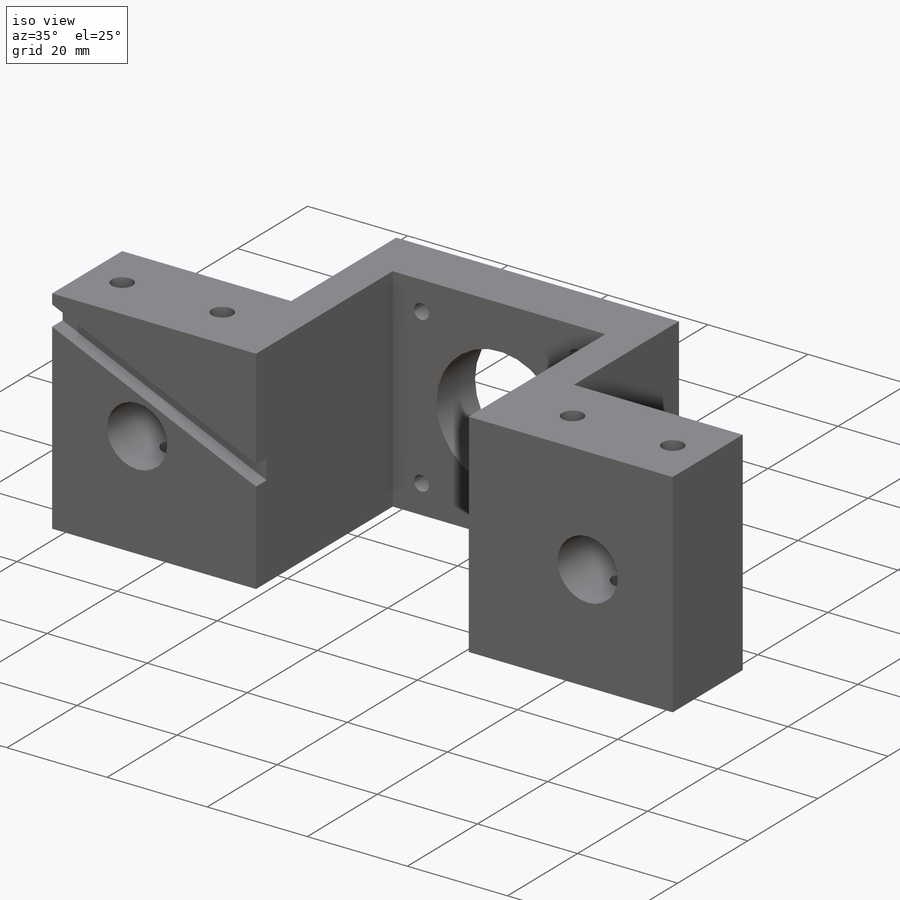
[diagram: iso view]
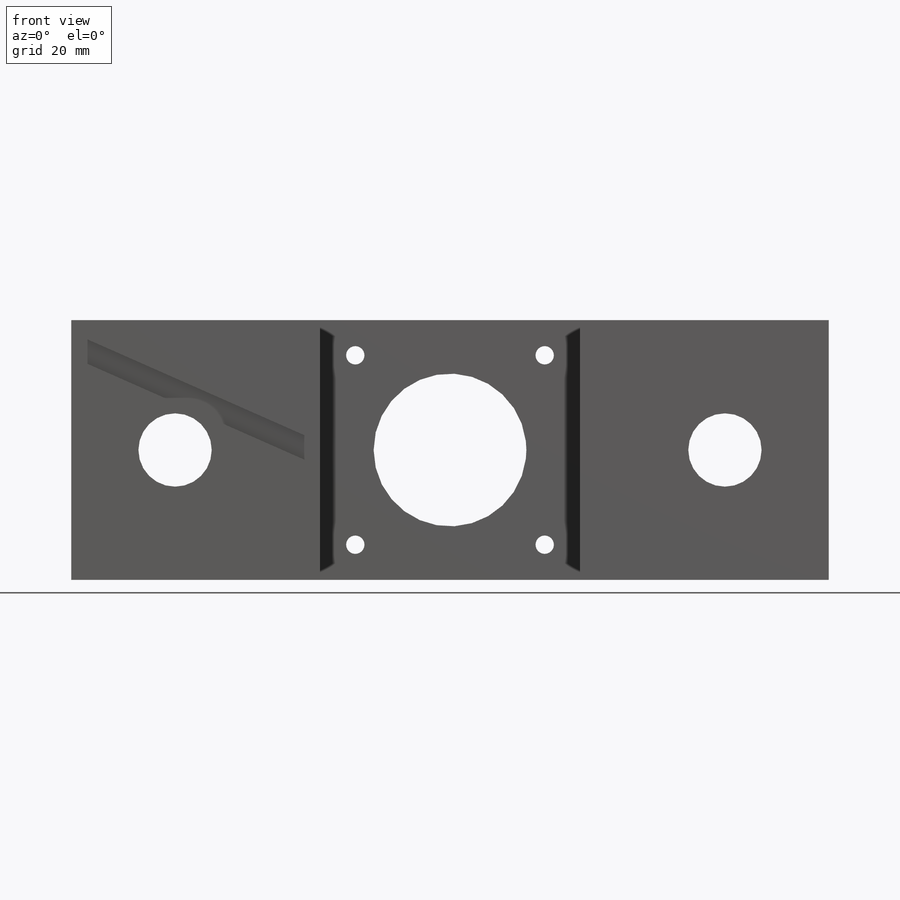
[diagram: front view]
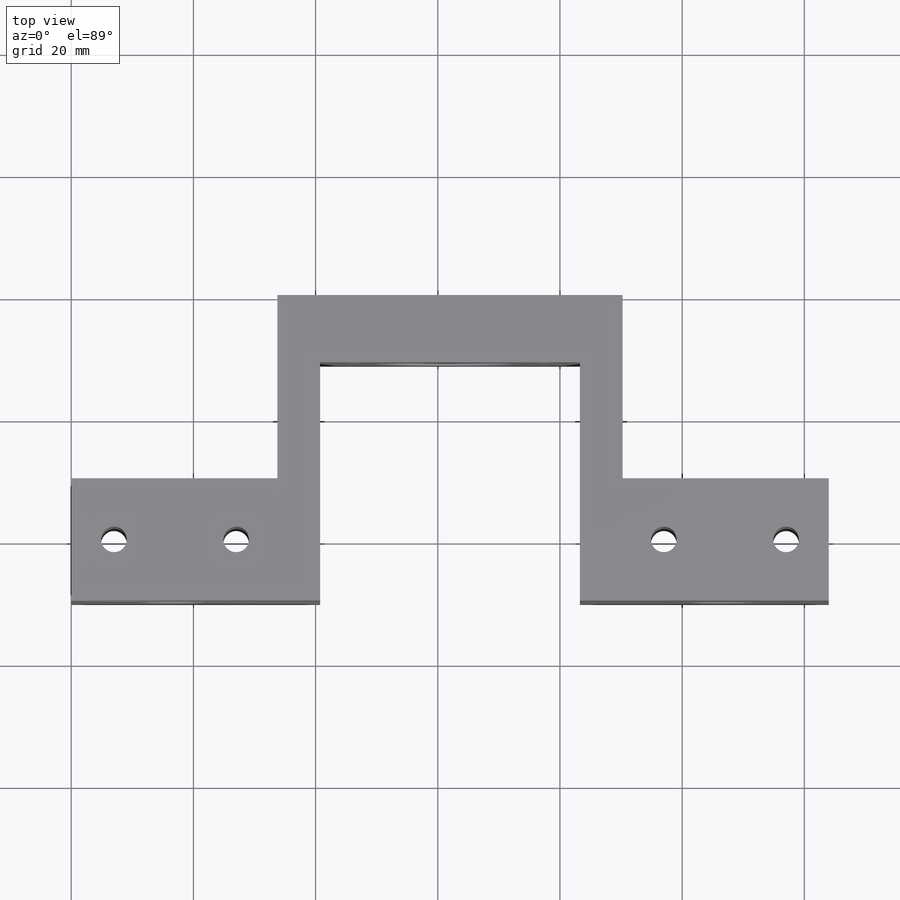
[diagram: top view]
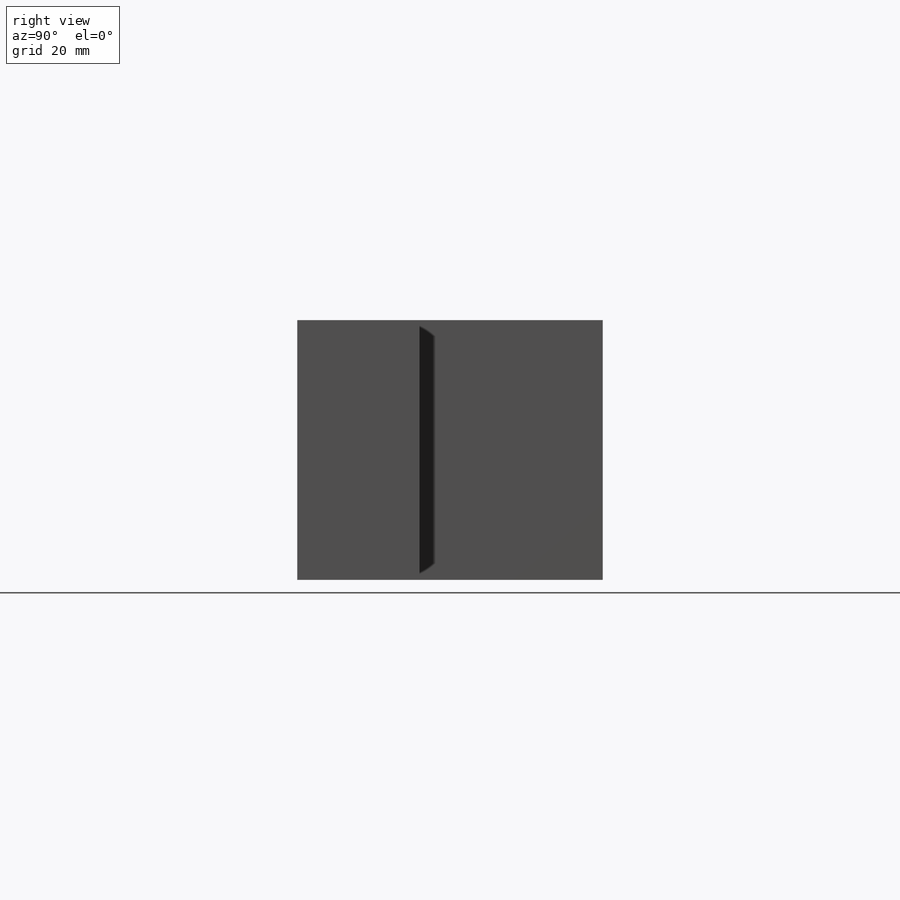
[diagram: right view]
SOLIDWORKS PART (.sldprt)
format: sldprt  version: not decoded by parser v0  size: 285,184 bytes
history: native  units: mm
features: sketch x5, cut_extrude x4, material x1, extrude x1 (+11 scaffold rows collapsed)
feature tree (22):
  scaffold x11  (default folders/planes/origin — collapsed)
  material  "6061 Alloy"
  sketch  "Sketch2"  dims[c1.D3=25.0mm c1.D4=3.0mm c1.D5=3.0mm c1.D7=12.0mm c1.D1=124.0mm c1.D2=42.5mm c2.D5=31.0mm c2.D6=31.0mm c2.D8=15.0mm c2.D9=~112.59852mm c3.D8=45.0mm c3.D9=45.0mm c3.D10=~102.044681mm]
  extrude  "Boss-Extrude1"  Depth=50mm
  sketch  "Sketch3"  dims[D1=42.5mm]
  cut_extrude  "Cut-Extrude1"  Depth=39mm
  sketch  "Sketch4"  dims[D1=7.0mm D2=7.0mm D3=42.5mm]
  cut_extrude  "Cut-Extrude2"  Depth=20mm
  sketch  "Sketch5"  dims[c1.D1=4.2mm c1.D8=4.2mm c2.D1=~165.053728mm c2.D2=7.0mm c2.D3=20.0mm c2.D4=7.0mm c2.D5=20.0mm c2.D6=17.0mm c2.D7=17.0mm c3.D3=27.0mm c3.D5=27.0mm]
  cut_extrude  "Cut-Extrude3"  [1 undecoded]
  sketch  "Sketch7"  dims[D1=4.0mm D2=20.0mm D3=2.0mm]
  cut_extrude  "Cut-Extrude4"  Depth=3mm
decode coverage: 9 of 10 modeling features carry decoded parameters
note: ~ marks probable driven/reference dimensions
note: 1 parameter value undecoded
note: suppression state not decoded; provenance and decode notes live in map.json
